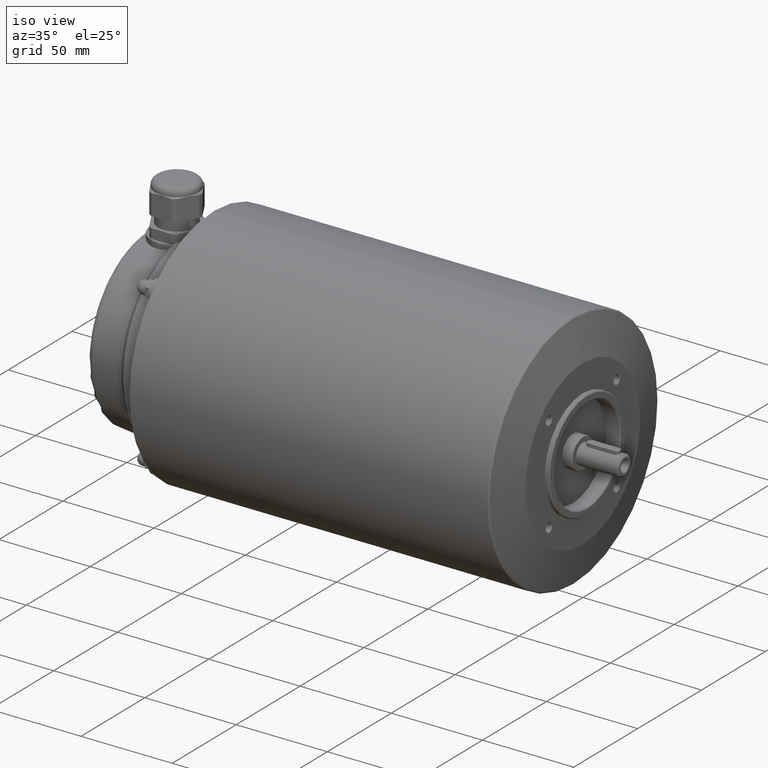
[diagram: clean part render]
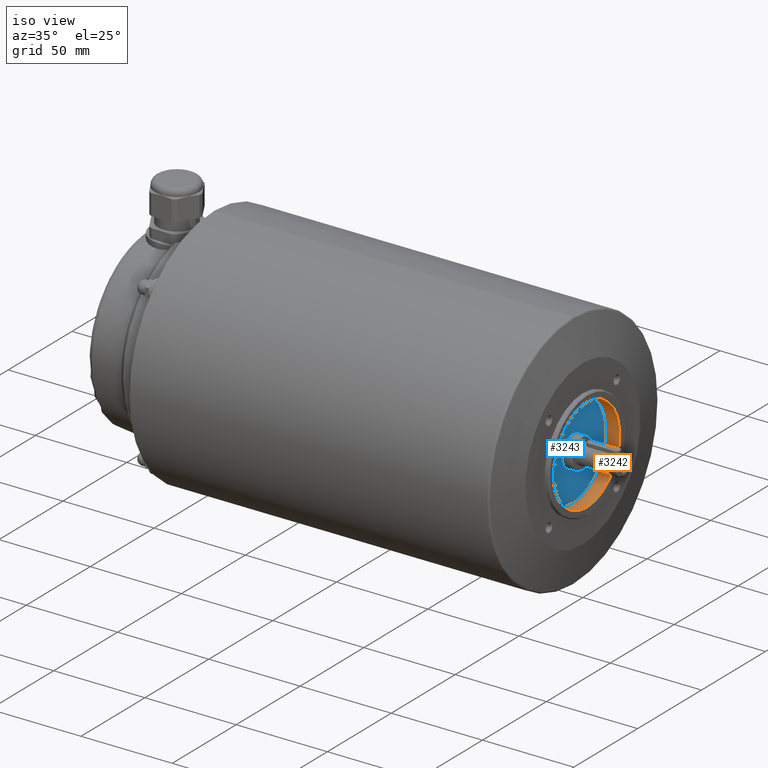
[diagram: same view with the hole feature highlighted: cylindrical wall and planar end face, labeled with their STEP entity ids]
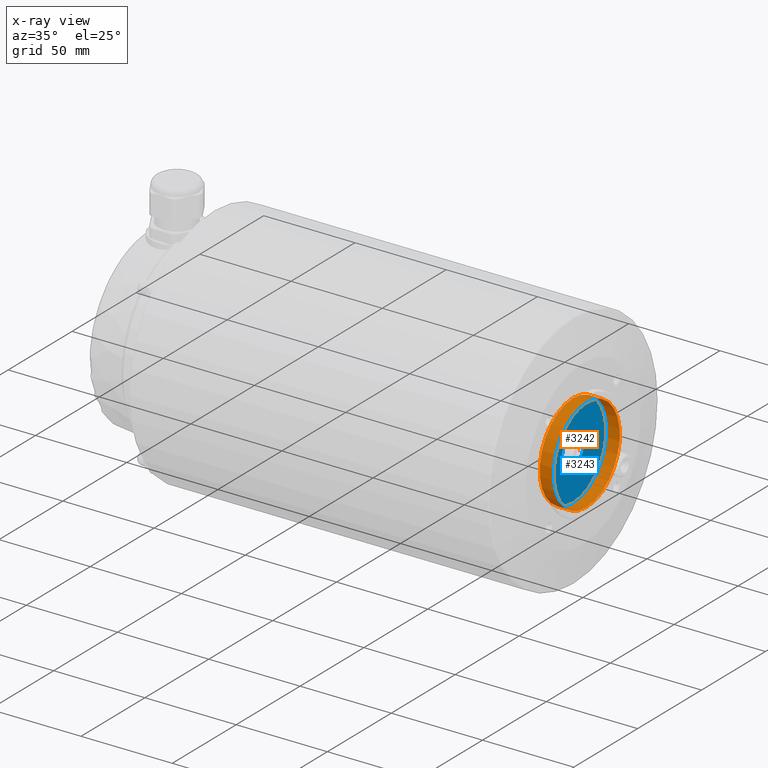
[diagram: x-ray of the same camera — body ghosted, the hole faces saturated]
A machine part, iso view. The highlighted faces form one hole feature of diameter 52 mm: the cylindrical wall (entity #3242, orange) and its adjacent planar end face (entity #3243, blue) — they share a circular edge in the B-rep.
The next image is the same camera in x-ray (body ghosted, the hole faces saturated) — the bore reads through the body.
Wall:
#516=ORIENTED_EDGE('',*,*,#1054,.T.);
#517=ORIENTED_EDGE('',*,*,#1055,.T.);
#1054=EDGE_CURVE('',#1325,#1325,#1507,.T.);
#1055=EDGE_CURVE('',#1326,#1326,#1508,.T.);
#1325=VERTEX_POINT('',#4563);
#1326=VERTEX_POINT('',#4565);
#1507=CIRCLE('',#3457,26.);
#1508=CIRCLE('',#3458,26.);
#1624=EDGE_LOOP('',(#516));
#1625=EDGE_LOOP('',(#517));
#1867=FACE_BOUND('',#1624,.T.);
#1868=FACE_BOUND('',#1625,.T.);
#2086=CYLINDRICAL_SURFACE('',#3456,26.);
#3242=ADVANCED_FACE('',(#1867,#1868),#2086,.F.);
#3456=AXIS2_PLACEMENT_3D('',#4561,#3844,#3845);
#3457=AXIS2_PLACEMENT_3D('',#4562,#3846,#3847);
#3458=AXIS2_PLACEMENT_3D('',#4564,#3848,#3849);
#3844=DIRECTION('',(-1.,0.,0.));
#3845=DIRECTION('',(0.,0.,1.));
#3846=DIRECTION('',(1.,0.,0.));
#3847=DIRECTION('',(0.,0.,-1.));
#3848=DIRECTION('',(-1.,0.,0.));
#3849=DIRECTION('',(0.,0.,1.));
#4561=CARTESIAN_POINT('',(-241.,0.,0.));
#4562=CARTESIAN_POINT('',(1.99999999999997,0.,0.));
#4563=CARTESIAN_POINT('',(1.99999999999997,0.,-26.));
#4564=CARTESIAN_POINT('',(-5.50000000000001,0.,0.));
#4565=CARTESIAN_POINT('',(-5.50000000000001,0.,26.));
End face:
#85=PLANE('',#3459);
#518=ORIENTED_EDGE('',*,*,#1056,.T.);
#519=ORIENTED_EDGE('',*,*,#1055,.F.);
#1055=EDGE_CURVE('',#1326,#1326,#1508,.T.);
#1056=EDGE_CURVE('',#1327,#1327,#1509,.T.);
#1326=VERTEX_POINT('',#4565);
#1327=VERTEX_POINT('',#4568);
#1508=CIRCLE('',#3458,26.);
#1509=CIRCLE('',#3460,8.5);
#1626=EDGE_LOOP('',(#518));
#1627=EDGE_LOOP('',(#519));
#1869=FACE_BOUND('',#1626,.T.);
#1870=FACE_BOUND('',#1627,.T.);
#3243=ADVANCED_FACE('',(#1869,#1870),#85,.T.);
#3458=AXIS2_PLACEMENT_3D('',#4564,#3848,#3849);
#3459=AXIS2_PLACEMENT_3D('',#4566,#3850,#3851);
#3460=AXIS2_PLACEMENT_3D('',#4567,#3852,#3853);
#3848=DIRECTION('',(-1.,0.,0.));
#3849=DIRECTION('',(0.,0.,1.));
#3850=DIRECTION('',(1.,0.,0.));
#3851=DIRECTION('',(0.,0.,-1.));
#3852=DIRECTION('',(-1.,0.,0.));
#3853=DIRECTION('',(0.,0.,1.));
#4564=CARTESIAN_POINT('',(-5.50000000000001,0.,0.));
#4565=CARTESIAN_POINT('',(-5.50000000000001,0.,26.));
#4566=CARTESIAN_POINT('',(-5.5,0.,26.));
#4567=CARTESIAN_POINT('',(-5.50000000000001,0.,0.));
#4568=CARTESIAN_POINT('',(-5.50000000000001,0.,8.5));